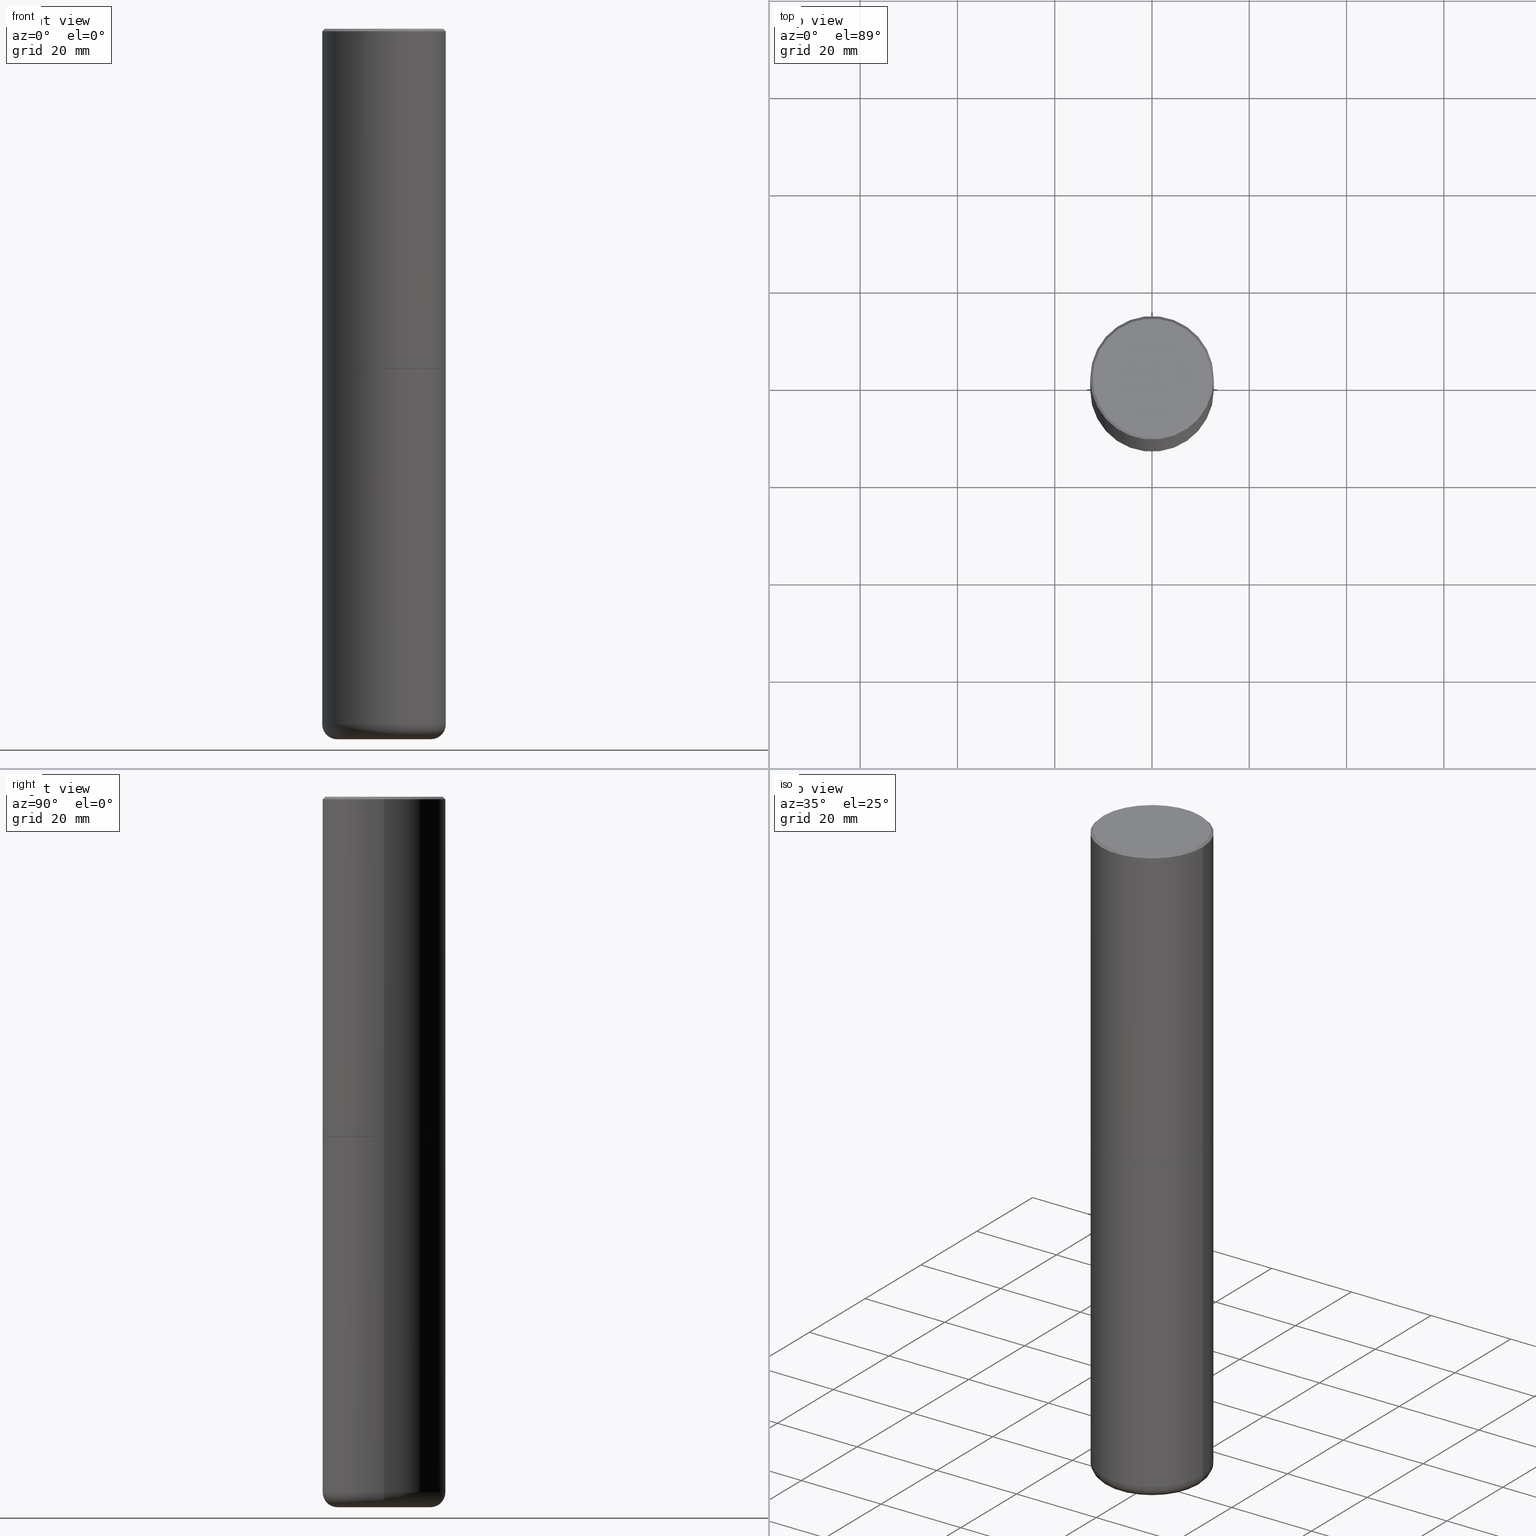
[diagram: canonical four-view strip — front | top / right | iso, engineering-drawing reading convention]
A machine part, canonical four-view strip (front | top / right | iso — engineering-drawing reading convention). The complete STEP part file that produces these views, byte-faithful:
ISO-10303-21;
HEADER;
FILE_DESCRIPTION (( 'STEP AP203' ),
    '1' );
FILE_NAME ('77322.STEP',
    '2024-03-06T17:06:02',
    ( '' ),
    ( '' ),
    'SwSTEP 2.0',
    'SolidWorks 2023',
    '' );
FILE_SCHEMA (( 'CONFIG_CONTROL_DESIGN' ));
ENDSEC;

DATA;
#1 = DIRECTION ( 'NONE',  ( 1.000000000000000000, -6.982962677686265922E-15, 0.000000000000000000 ) ) ;
#2 = DATE_AND_TIME ( #184, #378 ) ;
#3 = ORIENTED_EDGE ( 'NONE', *, *, #216, .F. ) ;
#4 = VECTOR ( 'NONE', #286, 39.37007874015748143 ) ;
#5 = CARTESIAN_POINT ( 'NONE',  ( 0.4989999999999999991, -1.308607205798409720E-14, -2.749999999999999556 ) ) ;
#6 = CARTESIAN_POINT ( 'NONE',  ( 1.406144563556453543E-28, -2.007601769834808621E-14, -5.750000000000000000 ) ) ;
#7 = PLANE ( 'NONE',  #264 ) ;
#8 = DIRECTION ( 'NONE',  ( 1.000000000000000000, -6.982962677686273021E-15, 0.000000000000000000 ) ) ;
#9 = CONICAL_SURFACE ( 'NONE', #211, 0.5000000000000001110, 0.7853981633974458365 ) ;
#10 = FACE_OUTER_BOUND ( 'NONE', #57, .T. ) ;
#11 = VECTOR ( 'NONE', #122, 39.37007874015748143 ) ;
#12 = CARTESIAN_POINT ( 'NONE',  ( -0.5000000000000003331, -1.281242234827830793E-15, -2.748999999999999666 ) ) ;
#13 = FACE_OUTER_BOUND ( 'NONE', #116, .T. ) ;
#14 = EDGE_CURVE ( 'NONE', #17, #47, #350, .T. ) ;
#15 = ORIENTED_EDGE ( 'NONE', *, *, #221, .T. ) ;
#16 = CARTESIAN_POINT ( 'NONE',  ( 3.351822085289407153E-15, 0.4799999999999999267, -1.616151867783303914E-15 ) ) ;
#17 = VERTEX_POINT ( 'NONE', #282 ) ;
#18 = EDGE_CURVE ( 'NONE', #85, #222, #93, .T. ) ;
#19 = LENGTH_MEASURE_WITH_UNIT ( LENGTH_MEASURE( 0.02539999999999999897 ), #410 );
#20 = DIRECTION ( 'NONE',  ( 1.000000000000000000, -6.982962677686274599E-15, 0.000000000000000000 ) ) ;
#21 = ORIENTED_EDGE ( 'NONE', *, *, #324, .T. ) ;
#22 = DATE_AND_TIME ( #212, #114 ) ;
#23 = LINE ( 'NONE', #278, #336 ) ;
#24 = APPROVAL ( #59, 'UNSPECIFIED' ) ;
#25 = PERSON_AND_ORGANIZATION ( #162, #69 ) ;
#26 = VERTEX_POINT ( 'NONE', #417 ) ;
#27 = AXIS2_PLACEMENT_3D ( 'NONE', #41, #164, #159 ) ;
#28 = APPROVAL_ROLE ( '' ) ;
#29 = AXIS2_PLACEMENT_3D ( 'NONE', #359, #187, #390 ) ;
#30 = VECTOR ( 'NONE', #344, 39.37007874015748143 ) ;
#31 = DIRECTION ( 'NONE',  ( 1.000000000000000000, -6.982962677686263555E-15, 0.000000000000000000 ) ) ;
#32 = ADVANCED_FACE ( 'NONE', ( #250 ), #195, .T. ) ;
#33 = EDGE_CURVE ( 'NONE', #342, #341, #283, .T. ) ;
#34 = FACE_OUTER_BOUND ( 'NONE', #301, .T. ) ;
#35 = DIRECTION ( 'NONE',  ( 1.000000000000000000, -6.982962677686266711E-15, 4.874852205035277589E-29 ) ) ;
#36 = EDGE_LOOP ( 'NONE', ( #347, #15, #214, #368 ) ) ;
#37 = CIRCLE ( 'NONE', #150, 0.4999999999999999445 ) ;
#38 = PLANE ( 'NONE',  #397 ) ;
#39 = DIRECTION ( 'NONE',  ( 1.000000000000000000, -6.982962677686269077E-15, 0.000000000000000000 ) ) ;
#40 = CC_DESIGN_PERSON_AND_ORGANIZATION_ASSIGNMENT ( #213, #241, ( #128 ) ) ;
#41 = CARTESIAN_POINT ( 'NONE',  ( 6.722593748202938917E-29, -9.598082200479805274E-15, -2.748999999999999666 ) ) ;
#42 = LOCAL_TIME ( 12, 6, 2.000000000000000000, #176 ) ;
#43 = DIRECTION ( 'NONE',  ( 1.000000000000000000, -6.982962677686265922E-15, 4.876176775795935793E-29 ) ) ;
#44 = DIRECTION ( 'NONE',  ( 2.445468806185136597E-29, -3.491481338843145583E-15, -1.000000000000000000 ) ) ;
#45 = EDGE_LOOP ( 'NONE', ( #290, #288, #382, #144 ) ) ;
#46 = DIRECTION ( 'NONE',  ( -1.000000000000000000, 7.105427357600997914E-15, 0.000000000000000000 ) ) ;
#47 = VERTEX_POINT ( 'NONE', #418 ) ;
#48 = CARTESIAN_POINT ( 'NONE',  ( 0.000000000000000000, 0.000000000000000000, 0.000000000000000000 ) ) ;
#49 = DIRECTION ( 'NONE',  ( 1.000000000000000000, -6.982962677686266711E-15, 4.876176775795935793E-29 ) ) ;
#50 = CIRCLE ( 'NONE', #51, 0.5000000000000001110 ) ;
#51 = AXIS2_PLACEMENT_3D ( 'NONE', #167, #70, #293 ) ;
#52 = PERSON_AND_ORGANIZATION ( #162, #69 ) ;
#53 = DIRECTION ( 'NONE',  ( -0.7071067811865457964, 2.468850131082238917E-15, -0.7071067811865492381 ) ) ;
#54 = APPROVAL_ROLE ( '' ) ;
#55 = CARTESIAN_POINT ( 'NONE',  ( 0.3799999999999999489, -2.231056575520768651E-14, -5.629999999999999893 ) ) ;
#56 = DESIGN_CONTEXT ( 'detailed design', #249, 'design' ) ;
#57 = EDGE_LOOP ( 'NONE', ( #371, #299, #21, #90 ) ) ;
#58 = CLOSED_SHELL ( 'NONE', ( #414, #246, #285, #202, #340, #32, #170, #190 ) ) ;
#59 = APPROVAL_STATUS ( 'not_yet_approved' ) ;
#60 = CARTESIAN_POINT ( 'NONE',  ( 6.725039217009123399E-29, -9.601573681818648281E-15, -2.749999999999999556 ) ) ;
#61 = DIRECTION ( 'NONE',  ( 2.438088387897960049E-29, -3.491481338843145188E-15, -1.000000000000000000 ) ) ;
#62 = CIRCLE ( 'NONE', #137, 0.1199999999999998845 ) ;
#63 = ORIENTED_EDGE ( 'NONE', *, *, #141, .T. ) ;
#64 = COORDINATED_UNIVERSAL_TIME_OFFSET ( 5, 0, .BEHIND. ) ;
#65 = VECTOR ( 'NONE', #148, 39.37007874015748143 ) ;
#66 = CARTESIAN_POINT ( 'NONE',  ( -2.922783960138615261E-45, 4.172960877065252270E-31, 1.195183497228115035E-16 ) ) ;
#67 = DIRECTION ( 'NONE',  ( 1.000000000000000000, -6.982962677686273021E-15, 0.000000000000000000 ) ) ;
#68 = PLANE ( 'NONE',  #399 ) ;
#69 = ORGANIZATION ( 'UNSPECIFIED', 'UNSPECIFIED', '' ) ;
#70 = DIRECTION ( 'NONE',  ( -2.445468806185136597E-29, 3.491481338843145583E-15, 1.000000000000000000 ) ) ;
#71 = CIRCLE ( 'NONE', #27, 0.5000000000000003331 ) ;
#72 = FACE_OUTER_BOUND ( 'NONE', #45, .T. ) ;
#73 = FACE_OUTER_BOUND ( 'NONE', #91, .T. ) ;
#74 = APPROVAL_PERSON_ORGANIZATION ( #25, #24, #28 ) ;
#75 = CARTESIAN_POINT ( 'NONE',  ( 4.890937612370299433E-31, -6.982962677686328587E-17, -0.02000000000000010797 ) ) ;
#76 = DIRECTION ( 'NONE',  ( 7.105427357601001859E-15, 1.000000000000000000, -3.491481338843145583E-15 ) ) ;
#77 = DATE_TIME_ROLE ( 'creation_date' ) ;
#78 = CC_DESIGN_PERSON_AND_ORGANIZATION_ASSIGNMENT ( #388, #220, ( #223 ) ) ;
#79 = DIRECTION ( 'NONE',  ( 1.000000000000000000, 0.000000000000000000, 0.000000000000000000 ) ) ;
#80 = DIRECTION ( 'NONE',  ( -2.445468806185136597E-29, 3.491481338843145583E-15, 1.000000000000000000 ) ) ;
#81 = CIRCLE ( 'NONE', #315, 0.3799999999999999489 ) ;
#82 = CIRCLE ( 'NONE', #281, 0.5000000000000000000 ) ;
#83 =( NAMED_UNIT ( * ) SI_UNIT ( $, .STERADIAN. ) SOLID_ANGLE_UNIT ( ) );
#84 = CARTESIAN_POINT ( 'NONE',  ( 0.3799999999999999489, -2.272954351586886946E-14, -5.750000000000000000 ) ) ;
#85 = VERTEX_POINT ( 'NONE', #354 ) ;
#86 = CARTESIAN_POINT ( 'NONE',  ( -0.4989999999999999991, -6.055965430375748360E-15, -2.749999999999999556 ) ) ;
#87 = ORIENTED_EDGE ( 'NONE', *, *, #141, .F. ) ;
#88 = PLANE ( 'NONE',  #105 ) ;
#89 = ORIENTED_EDGE ( 'NONE', *, *, #33, .T. ) ;
#90 = ORIENTED_EDGE ( 'NONE', *, *, #96, .T. ) ;
#91 = EDGE_LOOP ( 'NONE', ( #131, #226, #166, #328 ) ) ;
#92 = SECURITY_CLASSIFICATION ( '', '', #253 ) ;
#93 = LINE ( 'NONE', #5, #4 ) ;
#94 = DIRECTION ( 'NONE',  ( -1.000000000000000000, 6.982962677686265922E-15, -4.876176775795935793E-29 ) ) ;
#95 = CYLINDRICAL_SURFACE ( 'NONE', #188, 0.5000000000000000000 ) ;
#96 = EDGE_CURVE ( 'NONE', #134, #279, #289, .T. ) ;
#97 = AXIS2_PLACEMENT_3D ( 'NONE', #237, #200, #370 ) ;
#98 = CARTESIAN_POINT ( 'NONE',  ( 0.000000000000000000, 0.000000000000000000, 0.000000000000000000 ) ) ;
#99 = CIRCLE ( 'NONE', #294, 0.5000000000000000000 ) ;
#100 = EDGE_CURVE ( 'NONE', #411, #222, #409, .T. ) ;
#101 = DIRECTION ( 'NONE',  ( -2.445468806185136597E-29, 3.491481338843145583E-15, 1.000000000000000000 ) ) ;
#102 = APPROVAL ( #412, 'UNSPECIFIED' ) ;
#103 = DIRECTION ( 'NONE',  ( -1.000000000000000000, 6.982962677686265922E-15, 0.000000000000000000 ) ) ;
#104 = DIRECTION ( 'NONE',  ( -2.445468806185136597E-29, 3.491481338843145583E-15, 1.000000000000000000 ) ) ;
#105 = AXIS2_PLACEMENT_3D ( 'NONE', #358, #61, #94 ) ;
#106 = ORIENTED_EDGE ( 'NONE', *, *, #96, .F. ) ;
#107 = CARTESIAN_POINT ( 'NONE',  ( -0.3799999999999999489, -1.674014078067305588E-14, -5.750000000000000000 ) ) ;
#108 = EDGE_LOOP ( 'NONE', ( #383, #219, #152, #106 ) ) ;
#109 = DIRECTION ( 'NONE',  ( 0.000000000000000000, 0.000000000000000000, 1.000000000000000000 ) ) ;
#110 = CC_DESIGN_DATE_AND_TIME_ASSIGNMENT ( #356, #119, ( #92 ) ) ;
#111 = AXIS2_PLACEMENT_3D ( 'NONE', #351, #386, #316 ) ;
#112 = ADVANCED_FACE ( 'NONE', ( #118 ), #88, .F. ) ;
#113 =( CONVERSION_BASED_UNIT ( 'INCH', #19 ) LENGTH_UNIT ( ) NAMED_UNIT ( #333 ) );
#114 = LOCAL_TIME ( 12, 6, 2.000000000000000000, #307 ) ;
#115 = EDGE_CURVE ( 'NONE', #280, #309, #345, .T. ) ;
#116 = EDGE_LOOP ( 'NONE', ( #3, #205, #276, #251 ) ) ;
#117 = ORIENTED_EDGE ( 'NONE', *, *, #385, .F. ) ;
#118 = FACE_OUTER_BOUND ( 'NONE', #313, .T. ) ;
#119 = DATE_TIME_ROLE ( 'classification_date' ) ;
#120 = CARTESIAN_POINT ( 'NONE',  ( 1.406144563556453543E-28, -2.007601769834808621E-14, -5.750000000000000000 ) ) ;
#121 = EDGE_LOOP ( 'NONE', ( #89, #215, #87, #355 ) ) ;
#122 = DIRECTION ( 'NONE',  ( -2.445468806185136877E-29, 3.491481338843145188E-15, 1.000000000000000000 ) ) ;
#123 = CARTESIAN_POINT ( 'NONE',  ( -0.5000000000000000000, 3.552713678800500929E-15, -2.459467545127452891E-29 ) ) ;
#124 = AXIS2_PLACEMENT_3D ( 'NONE', #48, #109, #79 ) ;
#125 = CARTESIAN_POINT ( 'NONE',  ( 0.5000000000000001110, -3.500078625662629868E-15, -0.02000000000000010797 ) ) ;
#126 = TOROIDAL_SURFACE ( 'NONE', #97, 0.3799999999999999489, 0.1199999999999998845 ) ;
#127 = MANIFOLD_SOLID_BREP ( 'Body-Move/Copy2[2]', #58 ) ;
#128 = PRODUCT ( '77322', '77322', '', ( #304 ) ) ;
#129 = FACE_OUTER_BOUND ( 'NONE', #252, .T. ) ;
#130 = DIRECTION ( 'NONE',  ( -2.445468806185136877E-29, 3.491481338843145188E-15, 1.000000000000000000 ) ) ;
#131 = ORIENTED_EDGE ( 'NONE', *, *, #133, .F. ) ;
#132 = DIRECTION ( 'NONE',  ( 1.000000000000000000, -6.982962677686266711E-15, 4.876176775795935793E-29 ) ) ;
#133 = EDGE_CURVE ( 'NONE', #309, #280, #394, .T. ) ;
#134 = VERTEX_POINT ( 'NONE', #318 ) ;
#135 = APPLICATION_PROTOCOL_DEFINITION ( 'international standard', 'config_control_design', 1994, #262 ) ;
#136 = CARTESIAN_POINT ( 'NONE',  ( 6.725039217009123399E-29, -9.601573681818648281E-15, -2.749999999999999556 ) ) ;
#137 = AXIS2_PLACEMENT_3D ( 'NONE', #160, #76, #46 ) ;
#138 = DIRECTION ( 'NONE',  ( -2.445468806185136597E-29, 3.491481338843145583E-15, 1.000000000000000000 ) ) ;
#139 = APPROVAL_DATE_TIME ( #22, #168 ) ;
#140 = DIRECTION ( 'NONE',  ( 1.000000000000000000, -6.982962677686269077E-15, 0.000000000000000000 ) ) ;
#141 = EDGE_CURVE ( 'NONE', #17, #393, #37, .T. ) ;
#142 = APPROVAL_PERSON_ORGANIZATION ( #210, #102, #54 ) ;
#143 = ORIENTED_EDGE ( 'NONE', *, *, #33, .F. ) ;
#144 = ORIENTED_EDGE ( 'NONE', *, *, #380, .F. ) ;
#145 = PERSON_AND_ORGANIZATION ( #162, #69 ) ;
#146 = ORIENTED_EDGE ( 'NONE', *, *, #255, .T. ) ;
#147 = APPROVAL_DATE_TIME ( #2, #24 ) ;
#148 = DIRECTION ( 'NONE',  ( -2.445468806185136877E-29, 3.491481338843145188E-15, 1.000000000000000000 ) ) ;
#149 = AXIS2_PLACEMENT_3D ( 'NONE', #243, #138, #49 ) ;
#150 = AXIS2_PLACEMENT_3D ( 'NONE', #319, #156, #31 ) ;
#151 = AXIS2_PLACEMENT_3D ( 'NONE', #325, #193, #227 ) ;
#152 = ORIENTED_EDGE ( 'NONE', *, *, #314, .T. ) ;
#153 = DIRECTION ( 'NONE',  ( -2.438088387897960049E-29, 3.491481338843145188E-15, 1.000000000000000000 ) ) ;
#154 = CC_DESIGN_PERSON_AND_ORGANIZATION_ASSIGNMENT ( #224, #416, ( #92 ) ) ;
#155 = ORIENTED_EDGE ( 'NONE', *, *, #330, .F. ) ;
#156 = DIRECTION ( 'NONE',  ( -2.445468806185136597E-29, 3.491481338843145583E-15, 1.000000000000000000 ) ) ;
#157 = CARTESIAN_POINT ( 'NONE',  ( 6.725039217009123399E-29, -9.601573681818648281E-15, -2.749999999999999556 ) ) ;
#158 = DIRECTION ( 'NONE',  ( -2.445468806185136597E-29, 3.491481338843145583E-15, 1.000000000000000000 ) ) ;
#159 = DIRECTION ( 'NONE',  ( 1.000000000000000000, -6.982962677686265922E-15, 0.000000000000000000 ) ) ;
#160 = CARTESIAN_POINT ( 'NONE',  ( -0.3799999999999999489, -1.695697754179852647E-14, -5.629999999999999893 ) ) ;
#161 = LINE ( 'NONE', #123, #11 ) ;
#162 = PERSON ( 'UNSPECIFIED', 'UNSPECIFIED', 'UNSPECIFIED', ('UNSPECIFIED'), ('UNSPECIFIED'), ('UNSPECIFIED') ) ;
#163 = APPROVAL_PERSON_ORGANIZATION ( #52, #168, #311 ) ;
#164 = DIRECTION ( 'NONE',  ( -2.445468806185136597E-29, 3.491481338843145583E-15, 1.000000000000000000 ) ) ;
#165 = DIRECTION ( 'NONE',  ( 2.438088387897960049E-29, -3.491481338843145188E-15, -1.000000000000000000 ) ) ;
#166 = ORIENTED_EDGE ( 'NONE', *, *, #232, .T. ) ;
#167 = CARTESIAN_POINT ( 'NONE',  ( 4.890937612370299433E-31, -6.982962677686328587E-17, -0.02000000000000010797 ) ) ;
#168 = APPROVAL ( #372, 'UNSPECIFIED' ) ;
#169 = DIRECTION ( 'NONE',  ( 1.000000000000000000, -6.982962677686266711E-15, 4.876176775795935793E-29 ) ) ;
#170 = ADVANCED_FACE ( 'NONE', ( #34 ), #68, .F. ) ;
#171 = PRODUCT_DEFINITION_SHAPE ( 'NONE', 'NONE',  #175 ) ;
#172 = ORIENTED_EDGE ( 'NONE', *, *, #349, .F. ) ;
#173 = DIRECTION ( 'NONE',  ( -2.445468806185136597E-29, 3.491481338843145583E-15, 1.000000000000000000 ) ) ;
#174 = DIRECTION ( 'NONE',  ( -2.445468806185136597E-29, 3.491481338843145583E-15, 1.000000000000000000 ) ) ;
#175 = PRODUCT_DEFINITION ( 'UNKNOWN', '', #223, #56 ) ;
#176 = COORDINATED_UNIVERSAL_TIME_OFFSET ( 5, 0, .BEHIND. ) ;
#177 = DIRECTION ( 'NONE',  ( -0.7071067811867406405, 7.493145998871051513E-15, 0.7071067811863543939 ) ) ;
#178 = APPLICATION_PROTOCOL_DEFINITION ( 'international standard', 'config_control_design', 1994, #249 ) ;
#179 = CC_DESIGN_APPROVAL ( #24, ( #92 ) ) ;
#180 = PERSON_AND_ORGANIZATION_ROLE ( 'creator' ) ;
#181 = UNCERTAINTY_MEASURE_WITH_UNIT (LENGTH_MEASURE( 1.000000000000000082E-05 ), #113, 'distance_accuracy_value', 'NONE');
#182 = ADVANCED_FACE ( 'NONE', ( #13 ), #95, .T. ) ;
#183 = ORIENTED_EDGE ( 'NONE', *, *, #357, .T. ) ;
#184 = CALENDAR_DATE ( 2024, 6, 3 ) ;
#185 = ORIENTED_EDGE ( 'NONE', *, *, #306, .T. ) ;
#186 = ORIENTED_EDGE ( 'NONE', *, *, #100, .F. ) ;
#187 = DIRECTION ( 'NONE',  ( -2.445468806185136597E-29, 3.491481338843145583E-15, 1.000000000000000000 ) ) ;
#188 = AXIS2_PLACEMENT_3D ( 'NONE', #98, #302, #132 ) ;
#189 = CC_DESIGN_SECURITY_CLASSIFICATION ( #92, ( #223 ) ) ;
#190 = ADVANCED_FACE ( 'NONE', ( #403 ), #7, .F. ) ;
#191 = DIRECTION ( 'NONE',  ( -2.445468806185136597E-29, 3.491481338843145583E-15, 1.000000000000000000 ) ) ;
#192 = CARTESIAN_POINT ( 'NONE',  ( 6.725039217009123399E-29, -9.601573681818648281E-15, -2.749999999999999556 ) ) ;
#193 = DIRECTION ( 'NONE',  ( -2.445468806185136597E-29, 3.491481338843145583E-15, 1.000000000000000000 ) ) ;
#194 = ORIENTED_EDGE ( 'NONE', *, *, #18, .T. ) ;
#195 = CONICAL_SURFACE ( 'NONE', #203, 0.4989999999999999991, 0.7853981633977213939 ) ;
#196 = ADVANCED_FACE ( 'NONE', ( #291 ), #271, .T. ) ;
#197 = CONICAL_SURFACE ( 'NONE', #353, 0.5000000000000001110, 0.7853981633974458365 ) ;
#198 = CYLINDRICAL_SURFACE ( 'NONE', #317, 0.5000000000000002220 ) ;
#199 = CC_DESIGN_PERSON_AND_ORGANIZATION_ASSIGNMENT ( #145, #406, ( #175 ) ) ;
#200 = DIRECTION ( 'NONE',  ( -2.445468806185136597E-29, 3.491481338843145583E-15, 1.000000000000000000 ) ) ;
#201 = DIRECTION ( 'NONE',  ( -2.445468806185136597E-29, 3.491481338843145583E-15, 1.000000000000000000 ) ) ;
#202 = ADVANCED_FACE ( 'NONE', ( #10 ), #9, .T. ) ;
#203 = AXIS2_PLACEMENT_3D ( 'NONE', #192, #158, #389 ) ;
#204 = DIRECTION ( 'NONE',  ( 0.7071067811865457964, -7.319954787623249734E-15, -0.7071067811865492381 ) ) ;
#205 = ORIENTED_EDGE ( 'NONE', *, *, #380, .T. ) ;
#206 = CARTESIAN_POINT ( 'NONE',  ( 1.376798937882231913E-28, -1.965703993768690642E-14, -5.629999999999999893 ) ) ;
#207 = EDGE_LOOP ( 'NONE', ( #352, #259 ) ) ;
#208 = CALENDAR_DATE ( 2024, 6, 3 ) ;
#209 = AXIS2_PLACEMENT_3D ( 'NONE', #55, #374, #20 ) ;
#210 = PERSON_AND_ORGANIZATION ( #162, #69 ) ;
#211 = AXIS2_PLACEMENT_3D ( 'NONE', #75, #44, #230 ) ;
#212 = CALENDAR_DATE ( 2024, 6, 3 ) ;
#213 = PERSON_AND_ORGANIZATION ( #162, #69 ) ;
#214 = ORIENTED_EDGE ( 'NONE', *, *, #232, .F. ) ;
#215 = ORIENTED_EDGE ( 'NONE', *, *, #310, .T. ) ;
#216 = EDGE_CURVE ( 'NONE', #393, #26, #161, .T. ) ;
#217 = ORIENTED_EDGE ( 'NONE', *, *, #18, .F. ) ;
#218 = ORIENTED_EDGE ( 'NONE', *, *, #349, .T. ) ;
#219 = ORIENTED_EDGE ( 'NONE', *, *, #100, .T. ) ;
#220 = PERSON_AND_ORGANIZATION_ROLE ( 'design_supplier' ) ;
#221 = EDGE_CURVE ( 'NONE', #411, #134, #261, .T. ) ;
#222 = VERTEX_POINT ( 'NONE', #396 ) ;
#223 = PRODUCT_DEFINITION_FORMATION_WITH_SPECIFIED_SOURCE ( 'ANY', '', #128, .NOT_KNOWN. ) ;
#224 = PERSON_AND_ORGANIZATION ( #162, #69 ) ;
#225 = CARTESIAN_POINT ( 'NONE',  ( 4.890937612370299433E-31, -6.982962677686328587E-17, -0.02000000000000010797 ) ) ;
#226 = ORIENTED_EDGE ( 'NONE', *, *, #267, .T. ) ;
#227 = DIRECTION ( 'NONE',  ( 1.000000000000000000, -6.982962677686263555E-15, 0.000000000000000000 ) ) ;
#228 = CARTESIAN_POINT ( 'NONE',  ( 0.000000000000000000, 0.000000000000000000, 0.000000000000000000 ) ) ;
#229 = CIRCLE ( 'NONE', #338, 0.4989999999999999991 ) ;
#230 = DIRECTION ( 'NONE',  ( -1.000000000000000000, 6.982962677686265922E-15, 0.000000000000000000 ) ) ;
#231 = DIRECTION ( 'NONE',  ( 1.000000000000000000, -6.982962677686266711E-15, 0.000000000000000000 ) ) ;
#232 = EDGE_CURVE ( 'NONE', #279, #134, #50, .T. ) ;
#233 = CARTESIAN_POINT ( 'NONE',  ( -0.4999999999999998335, -1.610432625888640549E-14, -5.629999999999999893 ) ) ;
#234 = EDGE_LOOP ( 'NONE', ( #172, #185, #194, #186 ) ) ;
#235 = FACE_OUTER_BOUND ( 'NONE', #272, .T. ) ;
#236 = AXIS2_PLACEMENT_3D ( 'NONE', #120, #287, #67 ) ;
#237 = CARTESIAN_POINT ( 'NONE',  ( 1.376798937882231913E-28, -1.965703993768690642E-14, -5.629999999999999893 ) ) ;
#238 = CALENDAR_DATE ( 2024, 6, 3 ) ;
#239 = LINE ( 'NONE', #312, #30 ) ;
#240 = TOROIDAL_SURFACE ( 'NONE', #303, 0.3799999999999999489, 0.1199999999999998845 ) ;
#241 = PERSON_AND_ORGANIZATION_ROLE ( 'design_owner' ) ;
#242 = LOCAL_TIME ( 12, 6, 2.000000000000000000, #343 ) ;
#243 = CARTESIAN_POINT ( 'NONE',  ( 0.000000000000000000, 0.000000000000000000, 0.000000000000000000 ) ) ;
#244 = CIRCLE ( 'NONE', #209, 0.1199999999999998845 ) ;
#245 =( NAMED_UNIT ( * ) PLANE_ANGLE_UNIT ( ) SI_UNIT ( $, .RADIAN. ) );
#246 = ADVANCED_FACE ( 'NONE', ( #298 ), #198, .T. ) ;
#247 = ORIENTED_EDGE ( 'NONE', *, *, #216, .T. ) ;
#248 = ORIENTED_EDGE ( 'NONE', *, *, #306, .F. ) ;
#249 = APPLICATION_CONTEXT ( 'configuration controlled 3d designs of mechanical parts and assemblies' ) ;
#250 = FACE_OUTER_BOUND ( 'NONE', #234, .T. ) ;
#251 = ORIENTED_EDGE ( 'NONE', *, *, #255, .F. ) ;
#252 = EDGE_LOOP ( 'NONE', ( #257, #218, #117, #217 ) ) ;
#253 = SECURITY_CLASSIFICATION_LEVEL ( 'unclassified' ) ;
#254 = MANIFOLD_SOLID_BREP ( 'Body-Move/Copy2[1]', #258 ) ;
#255 = EDGE_CURVE ( 'NONE', #26, #47, #82, .T. ) ;
#256 = DIRECTION ( 'NONE',  ( -2.445468806185136597E-29, 3.491481338843145583E-15, 1.000000000000000000 ) ) ;
#257 = ORIENTED_EDGE ( 'NONE', *, *, #330, .T. ) ;
#258 = CLOSED_SHELL ( 'NONE', ( #196, #268, #112, #182, #295, #365 ) ) ;
#259 = ORIENTED_EDGE ( 'NONE', *, *, #133, .T. ) ;
#260 = CARTESIAN_POINT ( 'NONE',  ( 0.000000000000000000, 0.000000000000000000, 0.000000000000000000 ) ) ;
#261 = LINE ( 'NONE', #361, #379 ) ;
#262 = APPLICATION_CONTEXT ( 'configuration controlled 3d designs of mechanical parts and assemblies' ) ;
#263 = AXIS2_PLACEMENT_3D ( 'NONE', #136, #174, #140 ) ;
#264 = AXIS2_PLACEMENT_3D ( 'NONE', #16, #165, #367 ) ;
#265 = AXIS2_PLACEMENT_3D ( 'NONE', #157, #173, #407 ) ;
#266 = DIRECTION ( 'NONE',  ( 1.000000000000000000, -6.982962677686266711E-15, 4.876176775795935793E-29 ) ) ;
#267 = EDGE_CURVE ( 'NONE', #309, #279, #322, .T. ) ;
#268 = ADVANCED_FACE ( 'NONE', ( #402 ), #240, .T. ) ;
#269 = CARTESIAN_POINT ( 'NONE',  ( -0.4799999999999999267, 3.386736898677839197E-15, 1.195183497227879609E-16 ) ) ;
#270 = CARTESIAN_POINT ( 'NONE',  ( 1.406144563556453543E-28, -2.007601769834808621E-14, -5.750000000000000000 ) ) ;
#271 = CYLINDRICAL_SURFACE ( 'NONE', #275, 0.5000000000000000000 ) ;
#272 = EDGE_LOOP ( 'NONE', ( #143, #332 ) ) ;
#273 = COORDINATED_UNIVERSAL_TIME_OFFSET ( 5, 0, .BEHIND. ) ;
#274 = FACE_OUTER_BOUND ( 'NONE', #108, .T. ) ;
#275 = AXIS2_PLACEMENT_3D ( 'NONE', #260, #201, #169 ) ;
#276 = ORIENTED_EDGE ( 'NONE', *, *, #14, .T. ) ;
#277 = DATE_AND_TIME ( #238, #408 ) ;
#278 = CARTESIAN_POINT ( 'NONE',  ( -0.5000000000000001110, 3.421651712066270452E-15, -0.02000000000000010797 ) ) ;
#279 = VERTEX_POINT ( 'NONE', #363 ) ;
#280 = VERTEX_POINT ( 'NONE', #269 ) ;
#281 = AXIS2_PLACEMENT_3D ( 'NONE', #401, #398, #231 ) ;
#282 = CARTESIAN_POINT ( 'NONE',  ( 0.4999999999999998335, -2.314852127653003978E-14, -5.629999999999999893 ) ) ;
#283 = CIRCLE ( 'NONE', #236, 0.3799999999999999489 ) ;
#284 = VECTOR ( 'NONE', #177, 39.37007874015748143 ) ;
#285 = ADVANCED_FACE ( 'NONE', ( #73 ), #197, .T. ) ;
#286 = DIRECTION ( 'NONE',  ( 0.7071067811867406405, -2.468850131084279700E-15, 0.7071067811863543939 ) ) ;
#287 = DIRECTION ( 'NONE',  ( -2.445468806185136597E-29, 3.491481338843145583E-15, 1.000000000000000000 ) ) ;
#288 = ORIENTED_EDGE ( 'NONE', *, *, #373, .T. ) ;
#289 = CIRCLE ( 'NONE', #296, 0.5000000000000001110 ) ;
#290 = ORIENTED_EDGE ( 'NONE', *, *, #310, .F. ) ;
#291 = FACE_OUTER_BOUND ( 'NONE', #387, .T. ) ;
#292 = DIRECTION ( 'NONE',  ( -2.445468806185136597E-29, 3.491481338843145583E-15, 1.000000000000000000 ) ) ;
#293 = DIRECTION ( 'NONE',  ( 1.000000000000000000, -6.982962677686265922E-15, 0.000000000000000000 ) ) ;
#294 = AXIS2_PLACEMENT_3D ( 'NONE', #376, #80, #339 ) ;
#295 = ADVANCED_FACE ( 'NONE', ( #72 ), #126, .T. ) ;
#296 = AXIS2_PLACEMENT_3D ( 'NONE', #225, #256, #1 ) ;
#297 = CARTESIAN_POINT ( 'NONE',  ( -0.4989999999999999991, -6.050666976027525169E-15, -2.749999999999999556 ) ) ;
#298 = FACE_OUTER_BOUND ( 'NONE', #36, .T. ) ;
#299 = ORIENTED_EDGE ( 'NONE', *, *, #115, .F. ) ;
#300 = DIRECTION ( 'NONE',  ( 2.445468806185136597E-29, -3.491481338843145583E-15, -1.000000000000000000 ) ) ;
#301 = EDGE_LOOP ( 'NONE', ( #155, #248 ) ) ;
#302 = DIRECTION ( 'NONE',  ( -2.445468806185136597E-29, 3.491481338843145583E-15, 1.000000000000000000 ) ) ;
#303 = AXIS2_PLACEMENT_3D ( 'NONE', #206, #101, #366 ) ;
#304 = MECHANICAL_CONTEXT ( 'NONE', #262, 'mechanical' ) ;
#305 = CIRCLE ( 'NONE', #151, 0.4999999999999999445 ) ;
#306 = EDGE_CURVE ( 'NONE', #391, #85, #229, .T. ) ;
#307 = COORDINATED_UNIVERSAL_TIME_OFFSET ( 5, 0, .BEHIND. ) ;
#308 = CC_DESIGN_DATE_AND_TIME_ASSIGNMENT ( #277, #77, ( #175 ) ) ;
#309 = VERTEX_POINT ( 'NONE', #327 ) ;
#310 = EDGE_CURVE ( 'NONE', #341, #393, #62, .T. ) ;
#311 = APPROVAL_ROLE ( '' ) ;
#312 = CARTESIAN_POINT ( 'NONE',  ( 0.5000000000000002220, -3.491481338843134933E-15, 2.438088387897969017E-29 ) ) ;
#313 = EDGE_LOOP ( 'NONE', ( #183, #146 ) ) ;
#314 = EDGE_CURVE ( 'NONE', #222, #279, #239, .T. ) ;
#315 = AXIS2_PLACEMENT_3D ( 'NONE', #6, #292, #8 ) ;
#316 = DIRECTION ( 'NONE',  ( 1.000000000000000000, -6.982962677686265922E-15, 0.000000000000000000 ) ) ;
#317 = AXIS2_PLACEMENT_3D ( 'NONE', #228, #104, #266 ) ;
#318 = CARTESIAN_POINT ( 'NONE',  ( -0.5000000000000001110, 3.421651712066270452E-15, -0.02000000000000010797 ) ) ;
#319 = CARTESIAN_POINT ( 'NONE',  ( 1.376798937882231913E-28, -1.965703993768690642E-14, -5.629999999999999893 ) ) ;
#320 = DIRECTION ( 'NONE',  ( 2.438088387897960049E-29, -3.491481338843145188E-15, -1.000000000000000000 ) ) ;
#321 = CARTESIAN_POINT ( 'NONE',  ( 0.5000000000000000000, -3.491481338843133355E-15, 2.438088387897967896E-29 ) ) ;
#322 = LINE ( 'NONE', #125, #415 ) ;
#323 = CARTESIAN_POINT ( 'NONE',  ( 6.725039217009123399E-29, -9.601573681818648281E-15, -2.749999999999999556 ) ) ;
#324 = EDGE_CURVE ( 'NONE', #280, #134, #23, .T. ) ;
#325 = CARTESIAN_POINT ( 'NONE',  ( 1.376798937882231913E-28, -1.965703993768690642E-14, -5.629999999999999893 ) ) ;
#326 = CARTESIAN_POINT ( 'NONE',  ( 4.890937612370299433E-31, -6.982962677686328587E-17, -0.02000000000000010797 ) ) ;
#327 = CARTESIAN_POINT ( 'NONE',  ( 0.4799999999999999267, -3.396558832296482099E-15, 1.195183497228351200E-16 ) ) ;
#328 = ORIENTED_EDGE ( 'NONE', *, *, #324, .F. ) ;
#329 = DIRECTION ( 'NONE',  ( -2.445468806185136597E-29, 3.491481338843145583E-15, 1.000000000000000000 ) ) ;
#330 = EDGE_CURVE ( 'NONE', #85, #391, #377, .T. ) ;
#331 = EDGE_CURVE ( 'NONE', #342, #17, #244, .T. ) ;
#332 = ORIENTED_EDGE ( 'NONE', *, *, #373, .F. ) ;
#333 = DIMENSIONAL_EXPONENTS ( 1.000000000000000000, 0.000000000000000000, 0.000000000000000000, 0.000000000000000000, 0.000000000000000000, 0.000000000000000000, 0.000000000000000000 ) ;
#334 = APPROVAL_DATE_TIME ( #375, #102 ) ;
#335 = CYLINDRICAL_SURFACE ( 'NONE', #149, 0.5000000000000002220 ) ;
#336 = VECTOR ( 'NONE', #53, 39.37007874015748143 ) ;
#337 = PERSON_AND_ORGANIZATION ( #162, #69 ) ;
#338 = AXIS2_PLACEMENT_3D ( 'NONE', #323, #329, #39 ) ;
#339 = DIRECTION ( 'NONE',  ( 1.000000000000000000, -6.982962677686266711E-15, 0.000000000000000000 ) ) ;
#340 = ADVANCED_FACE ( 'NONE', ( #274 ), #335, .T. ) ;
#341 = VERTEX_POINT ( 'NONE', #107 ) ;
#342 = VERTEX_POINT ( 'NONE', #84 ) ;
#343 = COORDINATED_UNIVERSAL_TIME_OFFSET ( 5, 0, .BEHIND. ) ;
#344 = DIRECTION ( 'NONE',  ( -2.445468806185136877E-29, 3.491481338843145188E-15, 1.000000000000000000 ) ) ;
#345 = CIRCLE ( 'NONE', #29, 0.4799999999999999267 ) ;
#346 = ORIENTED_EDGE ( 'NONE', *, *, #14, .F. ) ;
#347 = ORIENTED_EDGE ( 'NONE', *, *, #385, .T. ) ;
#348 = CALENDAR_DATE ( 2024, 6, 3 ) ;
#349 = EDGE_CURVE ( 'NONE', #391, #411, #413, .T. ) ;
#350 = LINE ( 'NONE', #321, #65 ) ;
#351 = CARTESIAN_POINT ( 'NONE',  ( 6.722593748202938917E-29, -9.598082200479805274E-15, -2.748999999999999666 ) ) ;
#352 = ORIENTED_EDGE ( 'NONE', *, *, #115, .T. ) ;
#353 = AXIS2_PLACEMENT_3D ( 'NONE', #326, #300, #103 ) ;
#354 = CARTESIAN_POINT ( 'NONE',  ( 0.4989999999999999991, -1.308607205798409720E-14, -2.749999999999999556 ) ) ;
#355 = ORIENTED_EDGE ( 'NONE', *, *, #331, .F. ) ;
#356 = DATE_AND_TIME ( #348, #242 ) ;
#357 = EDGE_CURVE ( 'NONE', #47, #26, #99, .T. ) ;
#358 = CARTESIAN_POINT ( 'NONE',  ( 6.725039217009123399E-29, -9.601573681818648281E-15, -2.749999999999999556 ) ) ;
#359 = CARTESIAN_POINT ( 'NONE',  ( -2.922783960138615261E-45, 4.172960877065252270E-31, 1.195183497228115035E-16 ) ) ;
#360 = CC_DESIGN_APPROVAL ( #168, ( #175 ) ) ;
#361 = CARTESIAN_POINT ( 'NONE',  ( -0.5000000000000002220, 3.552713678800502507E-15, -2.459467545127454012E-29 ) ) ;
#362 =( GEOMETRIC_REPRESENTATION_CONTEXT ( 3 ) GLOBAL_UNCERTAINTY_ASSIGNED_CONTEXT ( ( #181 ) ) GLOBAL_UNIT_ASSIGNED_CONTEXT ( ( #113, #245, #83 ) ) REPRESENTATION_CONTEXT ( 'NONE', 'WORKASPACE' ) );
#363 = CARTESIAN_POINT ( 'NONE',  ( 0.5000000000000001110, -3.500078625662629868E-15, -0.02000000000000010797 ) ) ;
#364 = CC_DESIGN_PERSON_AND_ORGANIZATION_ASSIGNMENT ( #337, #180, ( #223 ) ) ;
#365 = ADVANCED_FACE ( 'NONE', ( #235 ), #38, .T. ) ;
#366 = DIRECTION ( 'NONE',  ( 1.000000000000000000, -6.982962677686265133E-15, 4.883557194083112340E-29 ) ) ;
#367 = DIRECTION ( 'NONE',  ( -1.000000000000000000, 6.982962677686265922E-15, -4.876176775795935793E-29 ) ) ;
#368 = ORIENTED_EDGE ( 'NONE', *, *, #314, .F. ) ;
#369 = DIRECTION ( 'NONE',  ( -1.000000000000000000, 6.982962677686265922E-15, -4.876176775795935793E-29 ) ) ;
#370 = DIRECTION ( 'NONE',  ( 1.000000000000000000, -6.982962677686265133E-15, 4.883557194083112340E-29 ) ) ;
#371 = ORIENTED_EDGE ( 'NONE', *, *, #267, .F. ) ;
#372 = APPROVAL_STATUS ( 'not_yet_approved' ) ;
#373 = EDGE_CURVE ( 'NONE', #341, #342, #81, .T. ) ;
#374 = DIRECTION ( 'NONE',  ( -6.982962677686266711E-15, -1.000000000000000000, 3.491481338843145583E-15 ) ) ;
#375 = DATE_AND_TIME ( #208, #42 ) ;
#376 = CARTESIAN_POINT ( 'NONE',  ( 6.725039217009123399E-29, -9.601573681818648281E-15, -2.749999999999999556 ) ) ;
#377 = CIRCLE ( 'NONE', #263, 0.4989999999999999991 ) ;
#378 = LOCAL_TIME ( 12, 6, 2.000000000000000000, #64 ) ;
#379 = VECTOR ( 'NONE', #130, 39.37007874015748143 ) ;
#380 = EDGE_CURVE ( 'NONE', #393, #17, #305, .T. ) ;
#381 = PRODUCT_RELATED_PRODUCT_CATEGORY ( 'detail', '', ( #128 ) ) ;
#382 = ORIENTED_EDGE ( 'NONE', *, *, #331, .T. ) ;
#383 = ORIENTED_EDGE ( 'NONE', *, *, #221, .F. ) ;
#384 = SHAPE_DEFINITION_REPRESENTATION ( #171, #405 ) ;
#385 = EDGE_CURVE ( 'NONE', #222, #411, #71, .T. ) ;
#386 = DIRECTION ( 'NONE',  ( -2.445468806185136597E-29, 3.491481338843145583E-15, 1.000000000000000000 ) ) ;
#387 = EDGE_LOOP ( 'NONE', ( #63, #247, #395, #346 ) ) ;
#388 = PERSON_AND_ORGANIZATION ( #162, #69 ) ;
#389 = DIRECTION ( 'NONE',  ( 1.000000000000000000, -6.982962677686269077E-15, 0.000000000000000000 ) ) ;
#390 = DIRECTION ( 'NONE',  ( 1.000000000000000000, -6.982962677686266711E-15, 4.874852205035277589E-29 ) ) ;
#391 = VERTEX_POINT ( 'NONE', #297 ) ;
#392 = CC_DESIGN_APPROVAL ( #102, ( #223 ) ) ;
#393 = VERTEX_POINT ( 'NONE', #233 ) ;
#394 = CIRCLE ( 'NONE', #404, 0.4799999999999999267 ) ;
#395 = ORIENTED_EDGE ( 'NONE', *, *, #357, .F. ) ;
#396 = CARTESIAN_POINT ( 'NONE',  ( 0.5000000000000003331, -1.308956353932294179E-14, -2.748999999999999666 ) ) ;
#397 = AXIS2_PLACEMENT_3D ( 'NONE', #270, #320, #369 ) ;
#398 = DIRECTION ( 'NONE',  ( -2.445468806185136597E-29, 3.491481338843145583E-15, 1.000000000000000000 ) ) ;
#399 = AXIS2_PLACEMENT_3D ( 'NONE', #60, #153, #43 ) ;
#400 = CONICAL_SURFACE ( 'NONE', #265, 0.4989999999999999991, 0.7853981633977213939 ) ;
#401 = CARTESIAN_POINT ( 'NONE',  ( 6.725039217009123399E-29, -9.601573681818648281E-15, -2.749999999999999556 ) ) ;
#402 = FACE_OUTER_BOUND ( 'NONE', #121, .T. ) ;
#403 = FACE_OUTER_BOUND ( 'NONE', #207, .T. ) ;
#404 = AXIS2_PLACEMENT_3D ( 'NONE', #66, #191, #35 ) ;
#405 = ADVANCED_BREP_SHAPE_REPRESENTATION ( '77322', ( #254, #127, #124 ), #362 ) ;
#406 = PERSON_AND_ORGANIZATION_ROLE ( 'creator' ) ;
#407 = DIRECTION ( 'NONE',  ( 1.000000000000000000, -6.982962677686269077E-15, 0.000000000000000000 ) ) ;
#408 = LOCAL_TIME ( 12, 6, 2.000000000000000000, #273 ) ;
#409 = CIRCLE ( 'NONE', #111, 0.5000000000000003331 ) ;
#410 =( LENGTH_UNIT ( ) NAMED_UNIT ( * ) SI_UNIT ( $, .METRE. ) );
#411 = VERTEX_POINT ( 'NONE', #12 ) ;
#412 = APPROVAL_STATUS ( 'not_yet_approved' ) ;
#413 = LINE ( 'NONE', #86, #284 ) ;
#414 = ADVANCED_FACE ( 'NONE', ( #129 ), #400, .T. ) ;
#415 = VECTOR ( 'NONE', #204, 39.37007874015748143 ) ;
#416 = PERSON_AND_ORGANIZATION_ROLE ( 'classification_officer' ) ;
#417 = CARTESIAN_POINT ( 'NONE',  ( -0.5000000000000000000, -1.107659313095227642E-14, -2.749999999999999556 ) ) ;
#418 = CARTESIAN_POINT ( 'NONE',  ( 0.5000000000000000000, -1.309305502066178164E-14, -2.749999999999999556 ) ) ;
ENDSEC;
END-ISO-10303-21;
